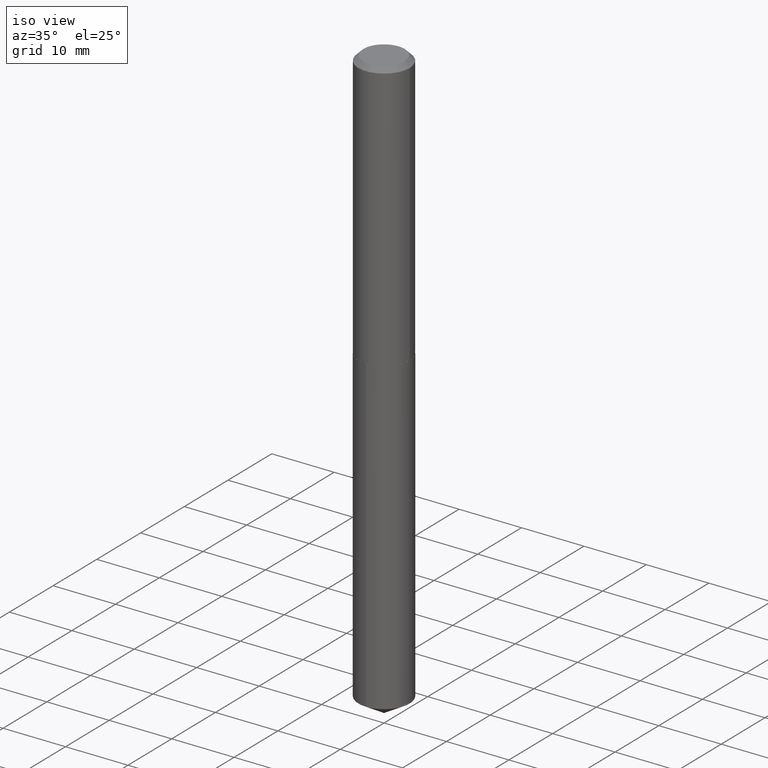
[diagram: clean part render]
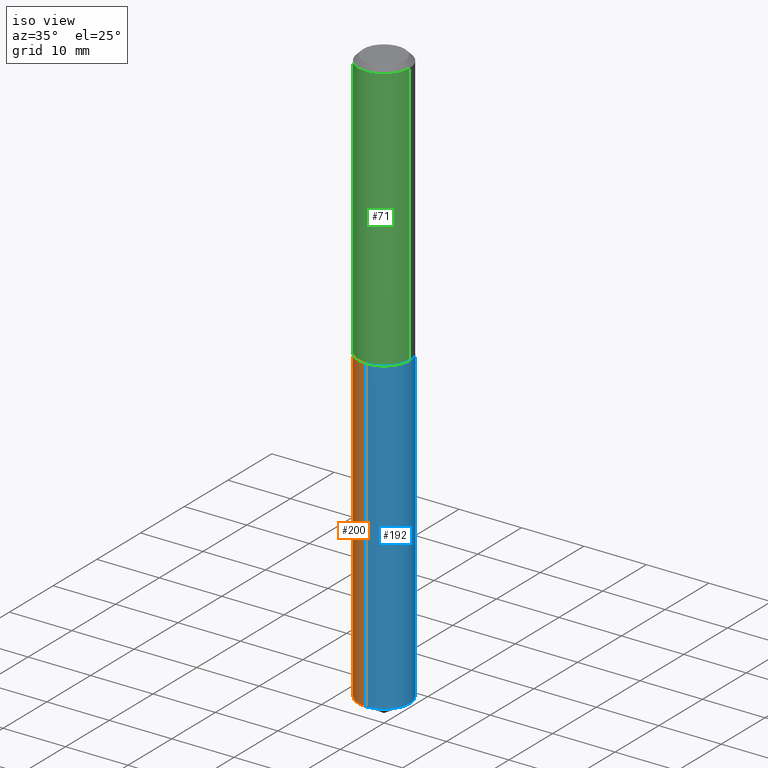
[diagram: same view with three faces highlighted in distinct colors, each labeled with its STEP entity id]
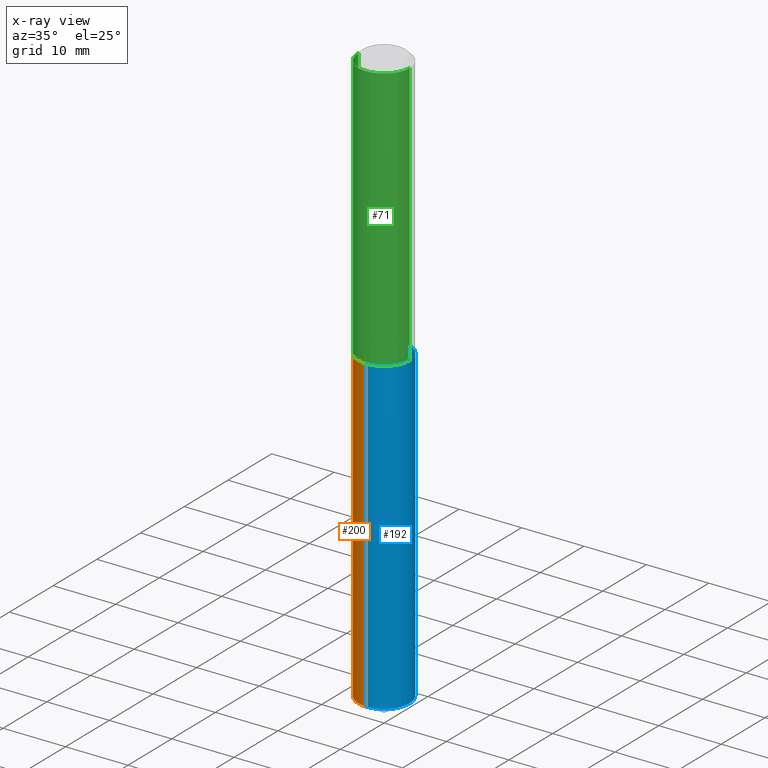
[diagram: x-ray of the same camera — body ghosted, the three highlighted faces saturated]
A machine part, iso view with three faces highlighted in distinct colors.
The next image is the same camera in x-ray (body ghosted, the three faces saturated) — at least one of them is partly hidden behind the body in this view.
Their STEP definitions:

[orange] entity #200 — the highlighted cylindrical surface (edge-blend (fillet) strip) has radius 4.1021 mm, axis along (-0, 0, 1).
#7 = AXIS2_PLACEMENT_3D ( 'NONE', #70, #312, #157 ) ;
#8 = ORIENTED_EDGE ( 'NONE', *, *, #114, .F. ) ;
#12 = VECTOR ( 'NONE', #191, 39.37007874015748143 ) ;
#15 = DIRECTION ( 'NONE',  ( -2.445519026843938507E-29, 3.491409420001358985E-15, 1.000000000000000000 ) ) ;
#53 = CIRCLE ( 'NONE', #245, 0.1615000000000000047 ) ;
#68 = DIRECTION ( 'NONE',  ( -2.445519026843938507E-29, 3.491409420001358590E-15, 1.000000000000000000 ) ) ;
#70 = CARTESIAN_POINT ( 'NONE',  ( 4.152406032902361793E-29, -5.928535313355661989E-15, -1.697999999999999954 ) ) ;
#82 = ORIENTED_EDGE ( 'NONE', *, *, #363, .F. ) ;
#97 = DIRECTION ( 'NONE',  ( -6.982962677686266711E-15, -1.000000000000000000, 3.383093490605898500E-15 ) ) ;
#98 = EDGE_CURVE ( 'NONE', #236, #335, #190, .T. ) ;
#107 = CARTESIAN_POINT ( 'NONE',  ( 8.933300379661556550E-29, -1.275410459949947591E-14, -3.652961010027050204 ) ) ;
#108 = CARTESIAN_POINT ( 'NONE',  ( 1.147526518252603051E-15, 0.1614999999999940650, -1.698000000000000620 ) ) ;
#111 = CARTESIAN_POINT ( 'NONE',  ( -1.127748472446242790E-15, -0.1615000000000127445, -3.652961010027049760 ) ) ;
#114 = EDGE_CURVE ( 'NONE', #274, #335, #155, .T. ) ;
#148 = EDGE_LOOP ( 'NONE', ( #82, #382, #210, #8 ) ) ;
#155 = CIRCLE ( 'NONE', #381, 0.1615000000000000047 ) ;
#157 = DIRECTION ( 'NONE',  ( -6.982962677686266711E-15, -1.000000000000000000, 3.383093490605898500E-15 ) ) ;
#161 = CARTESIAN_POINT ( 'NONE',  ( 1.147526518252651172E-15, 0.1614999999999872649, -3.652961010027051092 ) ) ;
#170 = CARTESIAN_POINT ( 'NONE',  ( -1.127748472446290517E-15, -0.1615000000000059444, -1.697999999999999510 ) ) ;
#190 = LINE ( 'NONE', #227, #282 ) ;
#191 = DIRECTION ( 'NONE',  ( -2.445519026843938507E-29, 3.491409420001358590E-15, 1.000000000000000000 ) ) ;
#200 = ADVANCED_FACE ( 'NONE', ( #222 ), #342, .T. ) ;
#201 = DIRECTION ( 'NONE',  ( -6.982962677686266711E-15, -1.000000000000000000, 3.383093490605898500E-15 ) ) ;
#210 = ORIENTED_EDGE ( 'NONE', *, *, #98, .T. ) ;
#222 = FACE_OUTER_BOUND ( 'NONE', #148, .T. ) ;
#227 = CARTESIAN_POINT ( 'NONE',  ( -1.127748472446290517E-15, -0.1615000000000059444, -1.697999999999999510 ) ) ;
#235 = DIRECTION ( 'NONE',  ( -2.445519026843938507E-29, 3.491409420001358985E-15, 1.000000000000000000 ) ) ;
#236 = VERTEX_POINT ( 'NONE', #111 ) ;
#245 = AXIS2_PLACEMENT_3D ( 'NONE', #107, #235, #201 ) ;
#269 = EDGE_CURVE ( 'NONE', #306, #236, #53, .T. ) ;
#274 = VERTEX_POINT ( 'NONE', #295 ) ;
#282 = VECTOR ( 'NONE', #68, 39.37007874015748143 ) ;
#288 = LINE ( 'NONE', #108, #12 ) ;
#295 = CARTESIAN_POINT ( 'NONE',  ( 1.147526518252651172E-15, 0.1614999999999940650, -1.698000000000000620 ) ) ;
#306 = VERTEX_POINT ( 'NONE', #161 ) ;
#311 = CARTESIAN_POINT ( 'NONE',  ( 4.152406032902361793E-29, -5.928535313355661989E-15, -1.697999999999999954 ) ) ;
#312 = DIRECTION ( 'NONE',  ( -2.445519026843938507E-29, 3.491409420001358985E-15, 1.000000000000000000 ) ) ;
#335 = VERTEX_POINT ( 'NONE', #170 ) ;
#342 = CYLINDRICAL_SURFACE ( 'NONE', #7, 0.1615000000000000047 ) ;
#363 = EDGE_CURVE ( 'NONE', #306, #274, #288, .T. ) ;
#381 = AXIS2_PLACEMENT_3D ( 'NONE', #311, #15, #97 ) ;
#382 = ORIENTED_EDGE ( 'NONE', *, *, #269, .T. ) ;

[blue] entity #192 — the highlighted cylindrical surface (edge-blend (fillet) strip) has radius 4.1021 mm, axis along (-0, 0, 1).
#12 = VECTOR ( 'NONE', #191, 39.37007874015748143 ) ;
#16 = DIRECTION ( 'NONE',  ( -6.982962677686266711E-15, -1.000000000000000000, 3.383093490605898500E-15 ) ) ;
#35 = AXIS2_PLACEMENT_3D ( 'NONE', #328, #377, #260 ) ;
#36 = ORIENTED_EDGE ( 'NONE', *, *, #363, .T. ) ;
#47 = CARTESIAN_POINT ( 'NONE',  ( 8.933300379661556550E-29, -1.275410459949947591E-14, -3.652961010027050204 ) ) ;
#68 = DIRECTION ( 'NONE',  ( -2.445519026843938507E-29, 3.491409420001358590E-15, 1.000000000000000000 ) ) ;
#72 = CYLINDRICAL_SURFACE ( 'NONE', #301, 0.1615000000000000047 ) ;
#86 = CIRCLE ( 'NONE', #251, 0.1615000000000000047 ) ;
#98 = EDGE_CURVE ( 'NONE', #236, #335, #190, .T. ) ;
#108 = CARTESIAN_POINT ( 'NONE',  ( 1.147526518252603051E-15, 0.1614999999999940650, -1.698000000000000620 ) ) ;
#111 = CARTESIAN_POINT ( 'NONE',  ( -1.127748472446242790E-15, -0.1615000000000127445, -3.652961010027049760 ) ) ;
#127 = DIRECTION ( 'NONE',  ( -2.445519026843938507E-29, 3.491409420001358985E-15, 1.000000000000000000 ) ) ;
#151 = EDGE_LOOP ( 'NONE', ( #322, #36, #265, #287 ) ) ;
#161 = CARTESIAN_POINT ( 'NONE',  ( 1.147526518252651172E-15, 0.1614999999999872649, -3.652961010027051092 ) ) ;
#170 = CARTESIAN_POINT ( 'NONE',  ( -1.127748472446290517E-15, -0.1615000000000059444, -1.697999999999999510 ) ) ;
#190 = LINE ( 'NONE', #227, #282 ) ;
#191 = DIRECTION ( 'NONE',  ( -2.445519026843938507E-29, 3.491409420001358590E-15, 1.000000000000000000 ) ) ;
#192 = ADVANCED_FACE ( 'NONE', ( #285 ), #72, .T. ) ;
#227 = CARTESIAN_POINT ( 'NONE',  ( -1.127748472446290517E-15, -0.1615000000000059444, -1.697999999999999510 ) ) ;
#236 = VERTEX_POINT ( 'NONE', #111 ) ;
#251 = AXIS2_PLACEMENT_3D ( 'NONE', #47, #387, #16 ) ;
#252 = DIRECTION ( 'NONE',  ( -6.982962677686266711E-15, -1.000000000000000000, 3.383093490605898500E-15 ) ) ;
#258 = EDGE_CURVE ( 'NONE', #335, #274, #338, .T. ) ;
#260 = DIRECTION ( 'NONE',  ( -6.982962677686266711E-15, -1.000000000000000000, 3.383093490605898500E-15 ) ) ;
#265 = ORIENTED_EDGE ( 'NONE', *, *, #258, .F. ) ;
#274 = VERTEX_POINT ( 'NONE', #295 ) ;
#282 = VECTOR ( 'NONE', #68, 39.37007874015748143 ) ;
#285 = FACE_OUTER_BOUND ( 'NONE', #151, .T. ) ;
#287 = ORIENTED_EDGE ( 'NONE', *, *, #98, .F. ) ;
#288 = LINE ( 'NONE', #108, #12 ) ;
#295 = CARTESIAN_POINT ( 'NONE',  ( 1.147526518252651172E-15, 0.1614999999999940650, -1.698000000000000620 ) ) ;
#301 = AXIS2_PLACEMENT_3D ( 'NONE', #344, #127, #252 ) ;
#306 = VERTEX_POINT ( 'NONE', #161 ) ;
#322 = ORIENTED_EDGE ( 'NONE', *, *, #376, .T. ) ;
#328 = CARTESIAN_POINT ( 'NONE',  ( 4.152406032902361793E-29, -5.928535313355661989E-15, -1.697999999999999954 ) ) ;
#335 = VERTEX_POINT ( 'NONE', #170 ) ;
#338 = CIRCLE ( 'NONE', #35, 0.1615000000000000047 ) ;
#344 = CARTESIAN_POINT ( 'NONE',  ( 4.152406032902361793E-29, -5.928535313355661989E-15, -1.697999999999999954 ) ) ;
#363 = EDGE_CURVE ( 'NONE', #306, #274, #288, .T. ) ;
#376 = EDGE_CURVE ( 'NONE', #236, #306, #86, .T. ) ;
#377 = DIRECTION ( 'NONE',  ( -2.445519026843938507E-29, 3.491409420001358985E-15, 1.000000000000000000 ) ) ;
#387 = DIRECTION ( 'NONE',  ( -2.445519026843938507E-29, 3.491409420001358985E-15, 1.000000000000000000 ) ) ;

[green] entity #71 — the highlighted cylindrical surface (edge-blend (fillet) strip) has radius 4.1021 mm, axis along (-0, 0, 1).
#3 = ORIENTED_EDGE ( 'NONE', *, *, #184, .F. ) ;
#10 = CARTESIAN_POINT ( 'NONE',  ( -0.1615000000000001157, 1.147526518252562622E-15, -7.944080170761677510E-30 ) ) ;
#11 = DIRECTION ( 'NONE',  ( -2.445468806185136877E-29, 3.491481338843145188E-15, 1.000000000000000000 ) ) ;
#50 = DIRECTION ( 'NONE',  ( -2.445468806185136597E-29, 3.491481338843145583E-15, 1.000000000000000000 ) ) ;
#65 = VERTEX_POINT ( 'NONE', #185 ) ;
#71 = ADVANCED_FACE ( 'NONE', ( #125 ), #249, .T. ) ;
#83 = CARTESIAN_POINT ( 'NONE',  ( 7.642090019328598283E-31, -1.091087918388489651E-16, -0.03125000000000019429 ) ) ;
#100 = DIRECTION ( 'NONE',  ( -2.445468806185136597E-29, 3.491481338843145583E-15, 1.000000000000000000 ) ) ;
#103 = VERTEX_POINT ( 'NONE', #345 ) ;
#105 = CIRCLE ( 'NONE', #126, 0.1615000000000000047 ) ;
#112 = ORIENTED_EDGE ( 'NONE', *, *, #348, .T. ) ;
#125 = FACE_OUTER_BOUND ( 'NONE', #132, .T. ) ;
#126 = AXIS2_PLACEMENT_3D ( 'NONE', #83, #261, #292 ) ;
#132 = EDGE_LOOP ( 'NONE', ( #3, #112, #146, #294 ) ) ;
#133 = LINE ( 'NONE', #350, #307 ) ;
#146 = ORIENTED_EDGE ( 'NONE', *, *, #379, .T. ) ;
#164 = VECTOR ( 'NONE', #11, 39.37007874015748143 ) ;
#168 = CARTESIAN_POINT ( 'NONE',  ( 0.1615000000000001990, -7.054538045132573600E-15, -1.697500000000000231 ) ) ;
#184 = EDGE_CURVE ( 'NONE', #196, #65, #372, .T. ) ;
#185 = CARTESIAN_POINT ( 'NONE',  ( -0.1615000000000000047, -1.870422664009981185E-15, -0.03125000000000019429 ) ) ;
#194 = AXIS2_PLACEMENT_3D ( 'NONE', #373, #100, #221 ) ;
#196 = VERTEX_POINT ( 'NONE', #371 ) ;
#221 = DIRECTION ( 'NONE',  ( 1.000000000000000000, -6.982962677686265922E-15, 4.876176775795935232E-29 ) ) ;
#233 = AXIS2_PLACEMENT_3D ( 'NONE', #378, #50, #290 ) ;
#249 = CYLINDRICAL_SURFACE ( 'NONE', #194, 0.1615000000000001157 ) ;
#261 = DIRECTION ( 'NONE',  ( -2.445468806185136597E-29, 3.491481338843145583E-15, 1.000000000000000000 ) ) ;
#290 = DIRECTION ( 'NONE',  ( 1.000000000000000000, -6.982962677686266711E-15, 0.000000000000000000 ) ) ;
#292 = DIRECTION ( 'NONE',  ( 1.000000000000000000, -6.982962677686266711E-15, 0.000000000000000000 ) ) ;
#294 = ORIENTED_EDGE ( 'NONE', *, *, #310, .F. ) ;
#307 = VECTOR ( 'NONE', #317, 39.37007874015748143 ) ;
#310 = EDGE_CURVE ( 'NONE', #65, #103, #105, .T. ) ;
#317 = DIRECTION ( 'NONE',  ( -2.445468806185136877E-29, 3.491481338843145188E-15, 1.000000000000000000 ) ) ;
#345 = CARTESIAN_POINT ( 'NONE',  ( 0.1615000000000000047, -1.236857264285181230E-15, -0.03125000000000019429 ) ) ;
#348 = EDGE_CURVE ( 'NONE', #196, #349, #358, .T. ) ;
#349 = VERTEX_POINT ( 'NONE', #168 ) ;
#350 = CARTESIAN_POINT ( 'NONE',  ( 0.1615000000000001157, -1.127748472446332721E-15, 7.875025492910441462E-30 ) ) ;
#358 = CIRCLE ( 'NONE', #233, 0.1615000000000001990 ) ;
#371 = CARTESIAN_POINT ( 'NONE',  ( -0.1615000000000001990, -4.779263054433677272E-15, -1.697500000000000231 ) ) ;
#372 = LINE ( 'NONE', #10, #164 ) ;
#373 = CARTESIAN_POINT ( 'NONE',  ( 0.000000000000000000, 0.000000000000000000, 0.000000000000000000 ) ) ;
#378 = CARTESIAN_POINT ( 'NONE',  ( 4.151183298499269552E-29, -5.926789572686240485E-15, -1.697500000000000231 ) ) ;
#379 = EDGE_CURVE ( 'NONE', #349, #103, #133, .T. ) ;